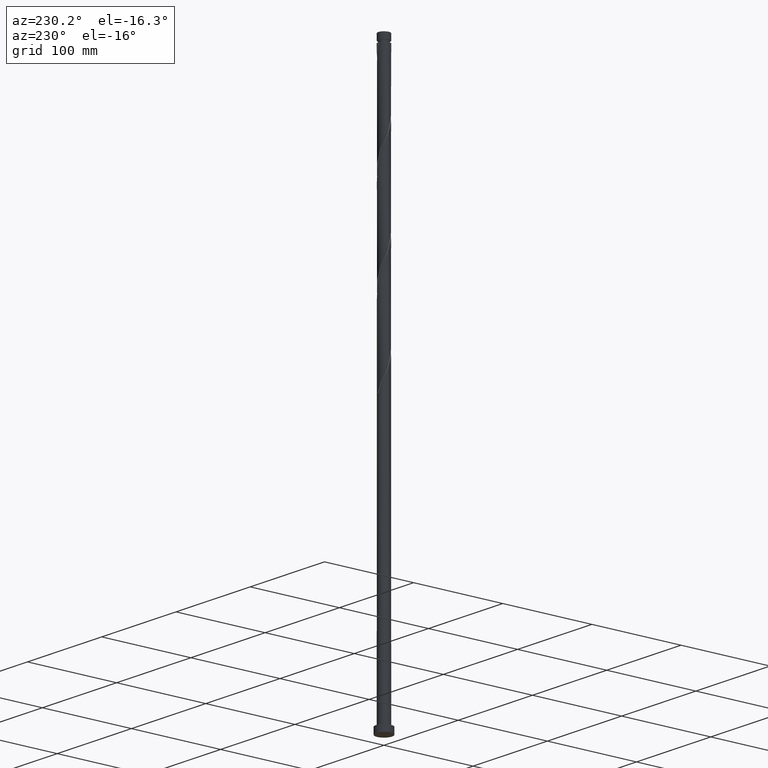
[diagram: clean part render]
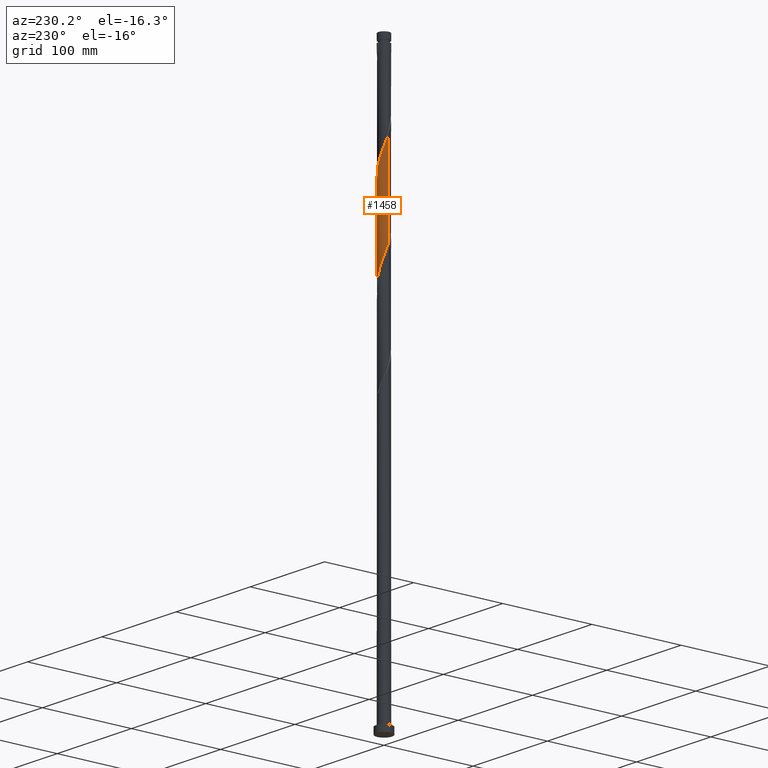
[diagram: same view with one face highlighted and labeled with its STEP entity id]
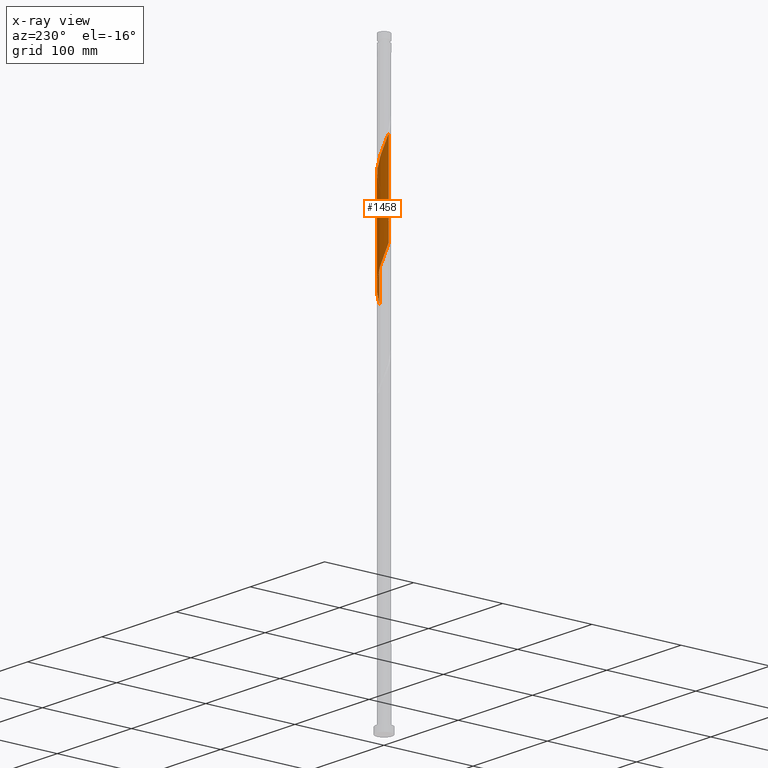
[diagram: x-ray of the same camera — body ghosted, the highlighted face saturated]
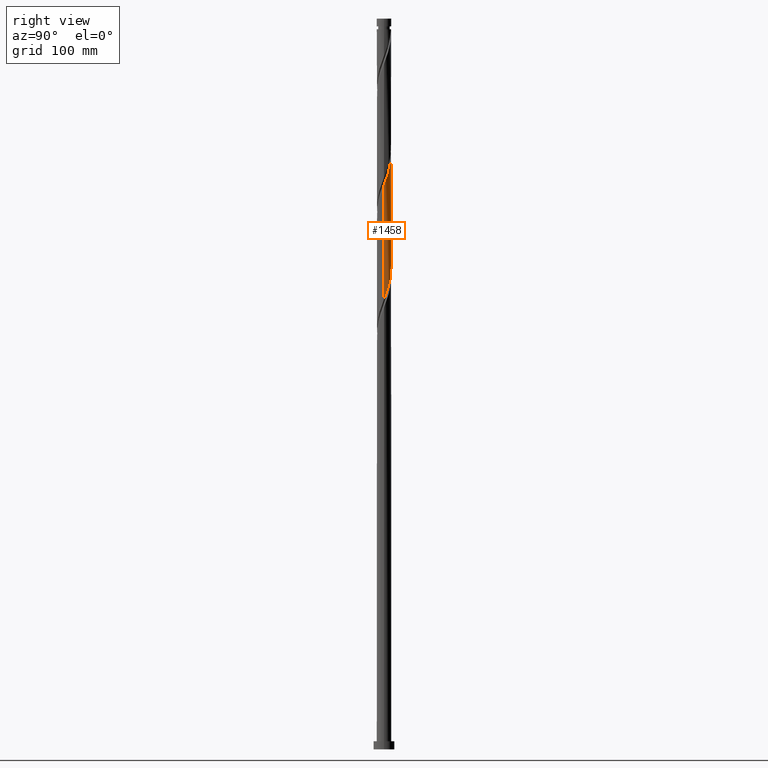
[diagram: same view with one face highlighted and labeled with its STEP entity id]
A machine part, auxiliary view. The second image highlights one B-rep face of the part: STEP entity #1458.
The next image is the same camera in x-ray: the body ghosted, the highlighted face saturated — about 0% of this face is hidden behind the body in this view.
A second angle (right view) of the same face is appended — the face is thin or edge-on in the first view.
In plain terms, the highlighted cylindrical surface (edge-blend (fillet) strip) has radius 6.25 mm, axis along (-0, -0, -1).
Its self-contained STEP definition (entity closure, byte-faithful):
#11 = CARTESIAN_POINT ( 'NONE',  ( -6.250000000000001776, 0.3376248979954079577, 439.4568789676523011 ) ) ;
#24 = CARTESIAN_POINT ( 'NONE',  ( 4.703723798979369874, 4.156067201626242991, 399.9537658955591155 ) ) ;
#26 = CARTESIAN_POINT ( 'NONE',  ( -6.250000000000009770, 0.2403199242980209871, 538.0209748982172187 ) ) ;
#38 = CARTESIAN_POINT ( 'NONE',  ( 6.187074021647200439, 1.057368058992053994, 390.6890600132063582 ) ) ;
#40 = CARTESIAN_POINT ( 'NONE',  ( -5.045516553015578332, 3.688531240649310039, 528.1155306014416055 ) ) ;
#47 = CARTESIAN_POINT ( 'NONE',  ( -4.572343029938433112, 4.300185039982783231, 427.7478835426180694 ) ) ;
#49 = CARTESIAN_POINT ( 'NONE',  ( -3.372352897531493365, 5.262103755582086428, 521.9390600132062445 ) ) ;
#70 = CARTESIAN_POINT ( 'NONE',  ( -0.09709155987255929654, 6.249245812816266898, 512.6743541308533167 ) ) ;
#97 = DIRECTION ( 'NONE',  ( -0.000000000000000000, -0.000000000000000000, -1.000000000000000000 ) ) ;
#178 = DIRECTION ( 'NONE',  ( -0.000000000000000000, -0.000000000000000000, -1.000000000000000000 ) ) ;
#195 = ORIENTED_EDGE ( 'NONE', *, *, #1174, .F. ) ;
#196 = CARTESIAN_POINT ( 'NONE',  ( 2.348023153125542883, 5.792174658311536994, 407.6743541308533167 ) ) ;
#208 = CARTESIAN_POINT ( 'NONE',  ( -1.052857513261133970, 6.160681054621281127, 416.9390600132062445 ) ) ;
#219 = CARTESIAN_POINT ( 'NONE',  ( 2.710176889971715131, 5.661523945598186280, 504.9537658955590587 ) ) ;
#232 = CARTESIAN_POINT ( 'NONE',  ( 6.250000000000011546, 6.662679571602031845E-15, 486.1643806502768257 ) ) ;
#238 = CARTESIAN_POINT ( 'NONE',  ( -4.703723798979375204, 4.156067201626251872, 526.5714129543825948 ) ) ;
#250 = CARTESIAN_POINT ( 'NONE',  ( 6.213629152942627520, 0.6732850434263684125, 487.9684717779121002 ) ) ;
#341 = ORIENTED_EDGE ( 'NONE', *, *, #395, .F. ) ;
#364 = CARTESIAN_POINT ( 'NONE',  ( 0.000000000000000000, 0.000000000000000000, 630.0000000000000000 ) ) ;
#367 = CARTESIAN_POINT ( 'NONE',  ( 4.281841208703486501, 4.552838220654087387, 401.4978835426180126 ) ) ;
#369 = CARTESIAN_POINT ( 'NONE',  ( 3.207255081654760254, 5.364327995303778351, 503.4096482485003889 ) ) ;
#372 = DIRECTION ( 'NONE',  ( -1.000000000000000000, 0.000000000000000000, 0.000000000000000000 ) ) ;
#375 = CARTESIAN_POINT ( 'NONE',  ( 1.243734296383284255, 6.124999999999999112, 410.7625894249708836 ) ) ;
#377 = CARTESIAN_POINT ( 'NONE',  ( 6.151240105858516216, 1.249062577133805085, 489.5125894249708836 ) ) ;
#389 = CARTESIAN_POINT ( 'NONE',  ( -5.387309307051779683, 3.220995279672369094, 529.6596482485003889 ) ) ;
#395 = EDGE_CURVE ( 'NONE', #2132, #1996, #706, .T. ) ;
#398 = CARTESIAN_POINT ( 'NONE',  ( 3.704333273337804933, 5.067132045009369534, 501.8655306014414350 ) ) ;
#451 = VECTOR ( 'NONE', #178, 1000.000000000000000 ) ;
#472 = EDGE_CURVE ( 'NONE', #1593, #1166, #1926, .T. ) ;
#485 = AXIS2_PLACEMENT_3D ( 'NONE', #364, #1739, #372 ) ;
#514 = CARTESIAN_POINT ( 'NONE',  ( -6.213629152942616862, 0.6732850434263681905, 438.5567070720297806 ) ) ;
#527 = CARTESIAN_POINT ( 'NONE',  ( 6.037255239842528987, 1.616802142809666831, 392.2331776602649143 ) ) ;
#549 = CARTESIAN_POINT ( 'NONE',  ( 0.4819863434057365392, 6.258242670773383587, 511.1302364837944197 ) ) ;
#558 = CARTESIAN_POINT ( 'NONE',  ( -3.207255081654753592, 5.364327995303769470, 423.1155306014414919 ) ) ;
#573 = LINE ( 'NONE', #1246, #451 ) ;
#621 = VECTOR ( 'NONE', #97, 1000.000000000000000 ) ;
#678 = CARTESIAN_POINT ( 'NONE',  ( -2.166952786544121601, 5.862321692033684251, 420.0272953073238682 ) ) ;
#702 = CARTESIAN_POINT ( 'NONE',  ( 6.231546110836961638, 0.4799302746365626260, 389.1449423661474611 ) ) ;
#706 =( BOUNDED_CURVE ( )  B_SPLINE_CURVE ( 2, ( #1568, #11, #514, #2079, #1021, #883, #894, #1879, #1890, #47, #722, #1400, #558, #1033, #678, #1227, #208, #2034, #1708, #1393, #375, #2069, #196, #862, #1717, #1538, #367, #24, #1206, #874, #1370, #2046, #527, #38, #702, #1382, #2057 ),
 .UNSPECIFIED., .F., .T. ) 
 B_SPLINE_CURVE_WITH_KNOTS ( ( 3, 2, 2, 2, 2, 2, 2, 2, 2, 2, 2, 2, 2, 2, 2, 2, 2, 2, 3 ),
 ( 0.6795293573162904943, 0.6838235294117647189, 0.6911764705882352811, 0.6985294117647058432, 0.7058823529411765163, 0.7132352941176470784, 0.7205882352941176405, 0.7279411764705882026, 0.7352941176470588758, 0.7426470588235294379, 0.7500000000000000000, 0.7573529411764705621, 0.7647058823529411242, 0.7720588235294117974, 0.7794117647058823595, 0.7867647058823529216, 0.7941176470588234837, 0.8014705882352941568, 0.8045293573162904943 ),
 .UNSPECIFIED. ) 
 CURVE ( )  GEOMETRIC_REPRESENTATION_ITEM ( )  RATIONAL_B_SPLINE_CURVE ( ( 0.9072066346053118124, 0.9068261157890789015, 0.9090909090909502499, 0.9052128875409815034, 0.9090909090909502499, 0.9052128875409815034, 0.9090909090909502499, 0.9052128875409815034, 0.9090909090909502499, 0.9052128875409815034, 0.9090909090909502499, 0.9052128875409815034, 0.9090909090909502499, 0.9052128875409815034, 0.9090909090909502499, 0.9052128875409815034, 0.9090909090909502499, 0.9052128875409815034, 0.9090909090909502499, 0.9052128875409815034, 0.9090909090909502499, 0.9052128875409815034, 0.9090909090909502499, 0.9052128875409815034, 0.9090909090909502499, 0.9052128875409815034, 0.9090909090909502499, 0.9052128875409815034, 0.9090909090909502499, 0.9052128875409815034, 0.9090909090909502499, 0.9052128875409815034, 0.9090909090909502499, 0.9052128875409815034, 0.9090909090909502499, 0.9074776808428526298, 0.9072066346053118124 ) ) 
 REPRESENTATION_ITEM ( '' )  );
#716 = CARTESIAN_POINT ( 'NONE',  ( -4.281841208703491830, 4.552838220654098933, 525.0272953073239250 ) ) ;
#722 = CARTESIAN_POINT ( 'NONE',  ( -4.138338151638117246, 4.683658542496072386, 426.2037658955592292 ) ) ;
#724 = CARTESIAN_POINT ( 'NONE',  ( 4.572343029938441994, 4.300185039982787671, 498.7772953073238682 ) ) ;
#736 = CARTESIAN_POINT ( 'NONE',  ( -5.887436458037868192, 2.176236226627279446, 532.7478835426178421 ) ) ;
#862 = CARTESIAN_POINT ( 'NONE',  ( 2.884747176635376498, 5.574598271482217093, 406.1302364837945333 ) ) ;
#874 = CARTESIAN_POINT ( 'NONE',  ( 5.387309307051770801, 3.220995279672364653, 396.8655306014416055 ) ) ;
#883 = CARTESIAN_POINT ( 'NONE',  ( -5.816988907484607729, 2.358082316569827697, 433.9243541308532031 ) ) ;
#885 = CARTESIAN_POINT ( 'NONE',  ( -1.243734296383281812, 6.125000000000010658, 515.7625894249709972 ) ) ;
#894 = CARTESIAN_POINT ( 'NONE',  ( -5.550818018030069467, 2.872441353746451487, 432.3802364837945333 ) ) ;
#900 = CYLINDRICAL_SURFACE ( 'NONE', #485, 6.250000000000000000 ) ;
#905 = CARTESIAN_POINT ( 'NONE',  ( -5.637372882544824826, 2.698615753149824048, 531.2037658955591723 ) ) ;
#917 = CARTESIAN_POINT ( 'NONE',  ( -6.187074021647211985, 1.057368058992059101, 535.8361188367355226 ) ) ;
#953 = ORIENTED_EDGE ( 'NONE', *, *, #1924, .T. ) ;
#1021 = CARTESIAN_POINT ( 'NONE',  ( -5.984114506671556200, 1.803572446851816613, 435.4684717779120433 ) ) ;
#1033 = CARTESIAN_POINT ( 'NONE',  ( -2.710176889971708913, 5.661523945598179175, 421.5714129543827084 ) ) ;
#1035 = CARTESIAN_POINT ( 'NONE',  ( 2.166952786544130038, 5.862321692033692244, 506.4978835426179558 ) ) ;
#1044 = CARTESIAN_POINT ( 'NONE',  ( 6.250000000000011546, 6.662679571602031845E-15, 486.1643806502768257 ) ) ;
#1114 = ORIENTED_EDGE ( 'NONE', *, *, #472, .F. ) ;
#1136 = EDGE_LOOP ( 'NONE', ( #1114, #953, #341, #195 ) ) ;
#1166 = VERTEX_POINT ( 'NONE', #2102 ) ;
#1174 = EDGE_CURVE ( 'NONE', #1166, #2132, #573, .T. ) ;
#1199 = CARTESIAN_POINT ( 'NONE',  ( 6.250000000000013323, 0.3376248979953959117, 487.0682998822895229 ) ) ;
#1206 = CARTESIAN_POINT ( 'NONE',  ( 5.045516553015568562, 3.688531240649304266, 398.4096482485002184 ) ) ;
#1227 = CARTESIAN_POINT ( 'NONE',  ( -1.623728683116535620, 6.063119438469188438, 418.4831776602650280 ) ) ;
#1229 = CARTESIAN_POINT ( 'NONE',  ( 4.138338151638126128, 4.683658542496076826, 500.3214129543826516 ) ) ;
#1246 = CARTESIAN_POINT ( 'NONE',  ( -6.250000000000000000, 0.000000000000000000, 630.0000000000000000 ) ) ;
#1313 = CARTESIAN_POINT ( 'NONE',  ( -6.250000000000001776, 7.021209414020131870E-15, 440.3607981996651120 ) ) ;
#1370 = CARTESIAN_POINT ( 'NONE',  ( 5.637372882544817720, 2.698615753149816943, 395.3214129543825948 ) ) ;
#1372 = CARTESIAN_POINT ( 'NONE',  ( -6.250000000000010658, 6.005374860502280273E-15, 538.6643806502769394 ) ) ;
#1382 = CARTESIAN_POINT ( 'NONE',  ( 6.250000000000000000, 0.2403199242980113559, 388.5042039517247190 ) ) ;
#1388 = FACE_OUTER_BOUND ( 'NONE', #1136, .T. ) ;
#1393 = CARTESIAN_POINT ( 'NONE',  ( 0.6761694631508501363, 6.240248954859140440, 412.3067070720297806 ) ) ;
#1395 = CARTESIAN_POINT ( 'NONE',  ( 5.284647128575540087, 3.386800390923078830, 495.6890600132061309 ) ) ;
#1400 = CARTESIAN_POINT ( 'NONE',  ( -3.704333273337800492, 5.067132045009359764, 424.6596482485002753 ) ) ;
#1402 = CARTESIAN_POINT ( 'NONE',  ( 1.623728683116538951, 6.063119438469199984, 508.0420011896767960 ) ) ;
#1412 = CARTESIAN_POINT ( 'NONE',  ( -6.231546110836972296, 0.4799302746365645134, 537.3802364837945333 ) ) ;
#1458 = ADVANCED_FACE ( 'NONE', ( #1388 ), #900, .T. ) ;
#1538 = CARTESIAN_POINT ( 'NONE',  ( 3.859958618427602239, 4.949609239681936224, 403.0420011896767960 ) ) ;
#1561 = CARTESIAN_POINT ( 'NONE',  ( -2.348023153125547768, 5.792174658311546764, 518.8508247190885641 ) ) ;
#1568 = CARTESIAN_POINT ( 'NONE',  ( -6.250000000000001776, 7.021209414020131870E-15, 440.3607981996651120 ) ) ;
#1579 = CARTESIAN_POINT ( 'NONE',  ( 5.816988907484617499, 2.358082316569833026, 492.6008247190885072 ) ) ;
#1593 = VERTEX_POINT ( 'NONE', #232 ) ;
#1607 = CARTESIAN_POINT ( 'NONE',  ( 6.250000000000000000, 7.654042494670957606E-16, 630.0000000000000000 ) ) ;
#1708 = CARTESIAN_POINT ( 'NONE',  ( 0.09709155987255846387, 6.249245812816258017, 413.8508247190885641 ) ) ;
#1717 = CARTESIAN_POINT ( 'NONE',  ( 3.372352897531488480, 5.262103755582074882, 404.5861188367355794 ) ) ;
#1719 = CARTESIAN_POINT ( 'NONE',  ( 1.052857513261137301, 6.160681054621292674, 509.5861188367355226 ) ) ;
#1728 = CARTESIAN_POINT ( 'NONE',  ( 5.984114506671566858, 1.803572446851816169, 491.0567070720297806 ) ) ;
#1739 = DIRECTION ( 'NONE',  ( -0.000000000000000000, -0.000000000000000000, -1.000000000000000000 ) ) ;
#1745 = CARTESIAN_POINT ( 'NONE',  ( 5.550818018030080125, 2.872441353746455039, 494.1449423661472338 ) ) ;
#1754 = CARTESIAN_POINT ( 'NONE',  ( -3.859958618427608457, 4.949609239681941553, 523.4831776602650280 ) ) ;
#1772 = LINE ( 'NONE', #1607, #621 ) ;
#1879 = CARTESIAN_POINT ( 'NONE',  ( -5.284647128575529429, 3.386800390923074389, 430.8361188367356931 ) ) ;
#1890 = CARTESIAN_POINT ( 'NONE',  ( -4.928495079256983935, 3.843492715452928365, 429.2920011896768528 ) ) ;
#1904 = CARTESIAN_POINT ( 'NONE',  ( -1.811299129615716375, 6.009751045140867554, 517.3067070720295533 ) ) ;
#1915 = CARTESIAN_POINT ( 'NONE',  ( -2.884747176635378718, 5.574598271482226863, 520.3949423661472338 ) ) ;
#1924 = EDGE_CURVE ( 'NONE', #1593, #1996, #1772, .T. ) ;
#1926 =( BOUNDED_CURVE ( )  B_SPLINE_CURVE ( 2, ( #1044, #1199, #250, #377, #1728, #1579, #1745, #1395, #2059, #724, #1229, #398, #369, #219, #1035, #1402, #1719, #549, #70, #2082, #885, #1904, #1561, #1915, #49, #1754, #716, #238, #40, #389, #905, #736, #2093, #917, #1412, #26, #1372 ),
 .UNSPECIFIED., .F., .T. ) 
 B_SPLINE_CURVE_WITH_KNOTS ( ( 3, 2, 2, 2, 2, 2, 2, 2, 2, 2, 2, 2, 2, 2, 2, 2, 2, 2, 3 ),
 ( 0.4295293573162903278, 0.4338235294117647189, 0.4411764705882352811, 0.4485294117647058432, 0.4558823529411765163, 0.4632352941176470784, 0.4705882352941176405, 0.4779411764705882026, 0.4852941176470588758, 0.4926470588235294379, 0.5000000000000000000, 0.5073529411764705621, 0.5147058823529411242, 0.5220588235294116863, 0.5294117647058823595, 0.5367647058823529216, 0.5441176470588235947, 0.5514705882352941568, 0.5545293573162903833 ),
 .UNSPECIFIED. ) 
 CURVE ( )  GEOMETRIC_REPRESENTATION_ITEM ( )  RATIONAL_B_SPLINE_CURVE ( ( 0.9072066346053186958, 0.9068261157890857849, 0.9090909090909571333, 0.9052128875409882758, 0.9090909090909571333, 0.9052128875409882758, 0.9090909090909571333, 0.9052128875409882758, 0.9090909090909571333, 0.9052128875409882758, 0.9090909090909571333, 0.9052128875409882758, 0.9090909090909571333, 0.9052128875409882758, 0.9090909090909571333, 0.9052128875409882758, 0.9090909090909571333, 0.9052128875409882758, 0.9090909090909571333, 0.9052128875409882758, 0.9090909090909571333, 0.9052128875409882758, 0.9090909090909571333, 0.9052128875409882758, 0.9090909090909571333, 0.9052128875409882758, 0.9090909090909571333, 0.9052128875409882758, 0.9090909090909571333, 0.9052128875409882758, 0.9090909090909571333, 0.9052128875409882758, 0.9090909090909571333, 0.9052128875409882758, 0.9090909090909571333, 0.9074776808428595132, 0.9072066346053186958 ) ) 
 REPRESENTATION_ITEM ( '' )  );
#1996 = VERTEX_POINT ( 'NONE', #2015 ) ;
#2015 = CARTESIAN_POINT ( 'NONE',  ( 6.250000000000001776, -7.260229308965499018E-15, 387.8607981996649983 ) ) ;
#2034 = CARTESIAN_POINT ( 'NONE',  ( -0.4819863434057327645, 6.258242670773373817, 415.3949423661475180 ) ) ;
#2046 = CARTESIAN_POINT ( 'NONE',  ( 5.887436458037860199, 2.176236226627274561, 393.7772953073239250 ) ) ;
#2057 = CARTESIAN_POINT ( 'NONE',  ( 6.250000000000001776, -7.260229308965499018E-15, 387.8607981996649983 ) ) ;
#2059 = CARTESIAN_POINT ( 'NONE',  ( 4.928495079256989264, 3.843492715452935027, 497.2331776602650280 ) ) ;
#2069 = CARTESIAN_POINT ( 'NONE',  ( 1.811299129615714598, 6.009751045140860448, 409.2184717779120433 ) ) ;
#2079 = CARTESIAN_POINT ( 'NONE',  ( -6.151240105858505558, 1.249062577133805529, 437.0125894249709404 ) ) ;
#2082 = CARTESIAN_POINT ( 'NONE',  ( -0.6761694631508505804, 6.240248954859151098, 514.2184717779119865 ) ) ;
#2093 = CARTESIAN_POINT ( 'NONE',  ( -6.037255239842539645, 1.616802142809668830, 534.2920011896769665 ) ) ;
#2102 = CARTESIAN_POINT ( 'NONE',  ( -6.250000000000010658, 6.005374860502280273E-15, 538.6643806502769394 ) ) ;
#2132 = VERTEX_POINT ( 'NONE', #1313 ) ;